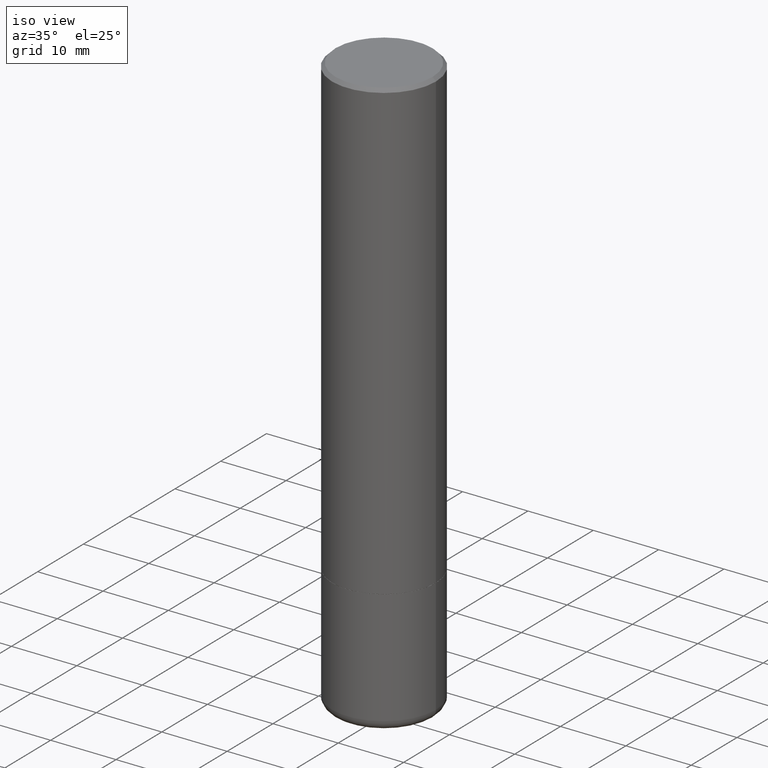
[diagram: clean part render]
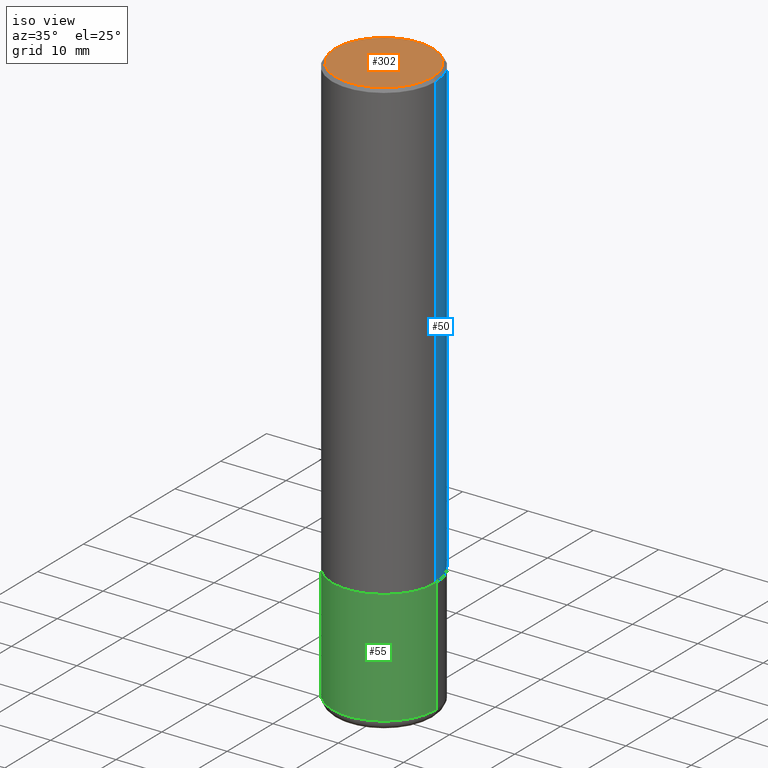
[diagram: same view with three faces highlighted in distinct colors, each labeled with its STEP entity id]
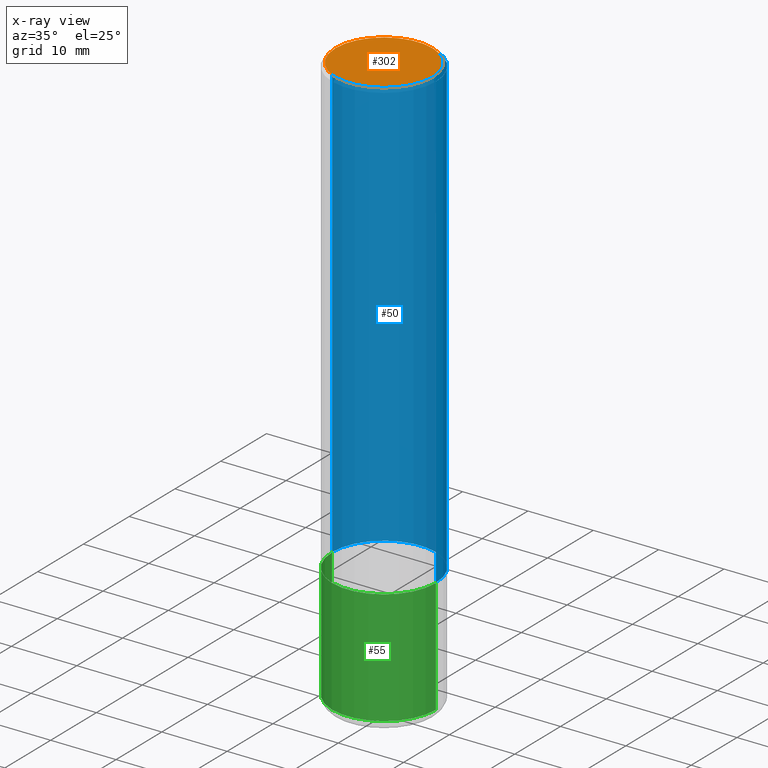
[diagram: x-ray of the same camera — body ghosted, the three highlighted faces saturated]
A machine part, iso view with three faces highlighted in distinct colors.
The next image is the same camera in x-ray (body ghosted, the three faces saturated) — at least one of them is partly hidden behind the body in this view.
Their STEP definitions:

[orange] entity #302 — the highlighted planar face has unit normal (0, -0, -1).
#8 = CARTESIAN_POINT ( 'NONE',  ( -1.043851414335219820E-46, 1.490343170380447200E-32, 4.268512490100411279E-18 ) ) ;
#11 = DIRECTION ( 'NONE',  ( 2.438088387897960049E-29, -3.491481338843145188E-15, -1.000000000000000000 ) ) ;
#18 = AXIS2_PLACEMENT_3D ( 'NONE', #460, #11, #412 ) ;
#28 = AXIS2_PLACEMENT_3D ( 'NONE', #8, #117, #342 ) ;
#31 = EDGE_CURVE ( 'NONE', #238, #51, #263, .T. ) ;
#37 = ORIENTED_EDGE ( 'NONE', *, *, #353, .T. ) ;
#47 = FACE_OUTER_BOUND ( 'NONE', #116, .T. ) ;
#51 = VERTEX_POINT ( 'NONE', #197 ) ;
#86 = PLANE ( 'NONE',  #18 ) ;
#116 = EDGE_LOOP ( 'NONE', ( #483, #37 ) ) ;
#117 = DIRECTION ( 'NONE',  ( -2.445468806185136597E-29, 3.491481338843145583E-15, 1.000000000000000000 ) ) ;
#197 = CARTESIAN_POINT ( 'NONE',  ( 0.2924999999999989830, -2.110215457714314014E-15, 4.268512490114932791E-18 ) ) ;
#230 = CARTESIAN_POINT ( 'NONE',  ( -1.043851414335219820E-46, 1.490343170380447200E-32, 4.268512490100411279E-18 ) ) ;
#238 = VERTEX_POINT ( 'NONE', #252 ) ;
#240 = DIRECTION ( 'NONE',  ( -2.445468806185136597E-29, 3.491481338843145583E-15, 1.000000000000000000 ) ) ;
#252 = CARTESIAN_POINT ( 'NONE',  ( -0.2924999999999989830, 2.077431396611657483E-15, 4.268512490086005323E-18 ) ) ;
#263 = CIRCLE ( 'NONE', #395, 0.2924999999999989830 ) ;
#275 = CIRCLE ( 'NONE', #28, 0.2924999999999989830 ) ;
#302 = ADVANCED_FACE ( 'NONE', ( #47 ), #86, .F. ) ;
#342 = DIRECTION ( 'NONE',  ( 1.000000000000000000, -6.982962677686266711E-15, 4.876067333457706292E-29 ) ) ;
#353 = EDGE_CURVE ( 'NONE', #51, #238, #275, .T. ) ;
#381 = DIRECTION ( 'NONE',  ( 1.000000000000000000, -6.982962677686266711E-15, 4.876067333457706292E-29 ) ) ;
#395 = AXIS2_PLACEMENT_3D ( 'NONE', #230, #240, #381 ) ;
#412 = DIRECTION ( 'NONE',  ( -1.000000000000000000, 6.982962677686265922E-15, -4.876176775795935793E-29 ) ) ;
#460 = CARTESIAN_POINT ( 'NONE',  ( 2.042516583223225834E-15, 0.2924999999999989830, -1.019124035366566451E-15 ) ) ;
#483 = ORIENTED_EDGE ( 'NONE', *, *, #31, .T. ) ;

[blue] entity #50 — the highlighted cylindrical surface (partial cylindrical patch) has radius 7.9375 mm, axis along (-0, 0, 1).
#6 = EDGE_LOOP ( 'NONE', ( #268, #89, #362, #271 ) ) ;
#10 = VERTEX_POINT ( 'NONE', #393 ) ;
#38 = DIRECTION ( 'NONE',  ( -2.445468806185136877E-29, 3.491481338843145188E-15, 1.000000000000000000 ) ) ;
#41 = CARTESIAN_POINT ( 'NONE',  ( -0.3124999999999994449, -2.613509864378025150E-15, -2.749000000000000554 ) ) ;
#50 = ADVANCED_FACE ( 'NONE', ( #458 ), #404, .T. ) ;
#64 = CARTESIAN_POINT ( 'NONE',  ( 4.890937612370311694E-31, -6.982962677686347076E-17, -0.02000000000000015654 ) ) ;
#89 = ORIENTED_EDGE ( 'NONE', *, *, #233, .T. ) ;
#99 = CARTESIAN_POINT ( 'NONE',  ( -0.3124999999999993339, 2.220446049250308348E-15, -1.537167215704654869E-29 ) ) ;
#102 = CIRCLE ( 'NONE', #355, 0.3124999999999994449 ) ;
#123 = AXIS2_PLACEMENT_3D ( 'NONE', #64, #133, #220 ) ;
#133 = DIRECTION ( 'NONE',  ( -2.445468806185136597E-29, 3.491481338843145583E-15, 1.000000000000000000 ) ) ;
#139 = EDGE_CURVE ( 'NONE', #456, #289, #102, .T. ) ;
#151 = VECTOR ( 'NONE', #327, 39.37007874015748143 ) ;
#174 = CIRCLE ( 'NONE', #123, 0.3124999999999991673 ) ;
#192 = DIRECTION ( 'NONE',  ( -2.445468806185136597E-29, 3.491481338843145583E-15, 1.000000000000000000 ) ) ;
#196 = CARTESIAN_POINT ( 'NONE',  ( -0.3124999999999991673, 2.112346210000089132E-15, -0.02000000000000015654 ) ) ;
#208 = EDGE_CURVE ( 'NONE', #10, #331, #174, .T. ) ;
#211 = LINE ( 'NONE', #99, #151 ) ;
#220 = DIRECTION ( 'NONE',  ( 1.000000000000000000, -6.982962677686266711E-15, 0.000000000000000000 ) ) ;
#232 = LINE ( 'NONE', #457, #411 ) ;
#233 = EDGE_CURVE ( 'NONE', #289, #331, #211, .T. ) ;
#254 = AXIS2_PLACEMENT_3D ( 'NONE', #467, #192, #388 ) ;
#268 = ORIENTED_EDGE ( 'NONE', *, *, #139, .T. ) ;
#271 = ORIENTED_EDGE ( 'NONE', *, *, #333, .F. ) ;
#289 = VERTEX_POINT ( 'NONE', #41 ) ;
#306 = CARTESIAN_POINT ( 'NONE',  ( 6.722593748202942280E-29, -9.598082200479810007E-15, -2.749000000000000554 ) ) ;
#327 = DIRECTION ( 'NONE',  ( -2.445468806185136877E-29, 3.491481338843145188E-15, 1.000000000000000000 ) ) ;
#331 = VERTEX_POINT ( 'NONE', #196 ) ;
#333 = EDGE_CURVE ( 'NONE', #456, #10, #232, .T. ) ;
#347 = DIRECTION ( 'NONE',  ( -2.445468806185136597E-29, 3.491481338843145583E-15, 1.000000000000000000 ) ) ;
#352 = CARTESIAN_POINT ( 'NONE',  ( 0.3124999999999994449, -1.178025803725676520E-14, -2.749000000000000554 ) ) ;
#355 = AXIS2_PLACEMENT_3D ( 'NONE', #306, #347, #418 ) ;
#362 = ORIENTED_EDGE ( 'NONE', *, *, #208, .F. ) ;
#388 = DIRECTION ( 'NONE',  ( 1.000000000000000000, -6.982962677686266711E-15, 4.876176775795935793E-29 ) ) ;
#393 = CARTESIAN_POINT ( 'NONE',  ( 0.3124999999999991673, -2.213735251080461389E-15, -0.02000000000000015654 ) ) ;
#404 = CYLINDRICAL_SURFACE ( 'NONE', #254, 0.3124999999999993339 ) ;
#411 = VECTOR ( 'NONE', #38, 39.37007874015748143 ) ;
#418 = DIRECTION ( 'NONE',  ( 1.000000000000000000, -6.982962677686269077E-15, 0.000000000000000000 ) ) ;
#456 = VERTEX_POINT ( 'NONE', #352 ) ;
#457 = CARTESIAN_POINT ( 'NONE',  ( 0.3124999999999993339, -2.182175836776953614E-15, 1.523805242436226712E-29 ) ) ;
#458 = FACE_OUTER_BOUND ( 'NONE', #6, .T. ) ;
#467 = CARTESIAN_POINT ( 'NONE',  ( 0.000000000000000000, 0.000000000000000000, 0.000000000000000000 ) ) ;

[green] entity #55 — the highlighted cylindrical surface (partial cylindrical patch) has radius 7.9375 mm, axis along (-0, 0, 1).
#12 = CARTESIAN_POINT ( 'NONE',  ( 0.000000000000000000, 0.000000000000000000, 0.000000000000000000 ) ) ;
#25 = CARTESIAN_POINT ( 'NONE',  ( 8.412418280234396057E-29, -1.201070378231507189E-14, -3.440002284616148653 ) ) ;
#30 = CARTESIAN_POINT ( 'NONE',  ( 0.3124999999999994449, -1.178374951859560505E-14, -2.750000000000000000 ) ) ;
#33 = CARTESIAN_POINT ( 'NONE',  ( 0.3125000000000000000, -1.419287961909203023E-14, -3.440002284616148653 ) ) ;
#55 = ADVANCED_FACE ( 'NONE', ( #344 ), #227, .T. ) ;
#66 = CARTESIAN_POINT ( 'NONE',  ( 0.3124999999999997224, -2.182175836776956375E-15, 1.523805242436228674E-29 ) ) ;
#69 = DIRECTION ( 'NONE',  ( 1.000000000000000000, -6.982962677686269077E-15, 0.000000000000000000 ) ) ;
#70 = DIRECTION ( 'NONE',  ( -2.445468806185136597E-29, 3.491481338843145583E-15, 1.000000000000000000 ) ) ;
#73 = DIRECTION ( 'NONE',  ( -2.445468806185136597E-29, 3.491481338843145583E-15, 1.000000000000000000 ) ) ;
#81 = EDGE_LOOP ( 'NONE', ( #419, #311, #462, #205 ) ) ;
#108 = LINE ( 'NONE', #66, #319 ) ;
#129 = VECTOR ( 'NONE', #287, 39.37007874015748143 ) ;
#138 = CARTESIAN_POINT ( 'NONE',  ( -0.3124999999999997224, 2.220446049250311109E-15, -1.537167215704656831E-29 ) ) ;
#163 = AXIS2_PLACEMENT_3D ( 'NONE', #269, #73, #191 ) ;
#191 = DIRECTION ( 'NONE',  ( 1.000000000000000000, -6.982962677686269077E-15, 0.000000000000000000 ) ) ;
#200 = EDGE_CURVE ( 'NONE', #449, #231, #423, .T. ) ;
#205 = ORIENTED_EDGE ( 'NONE', *, *, #358, .F. ) ;
#210 = AXIS2_PLACEMENT_3D ( 'NONE', #25, #70, #69 ) ;
#214 = DIRECTION ( 'NONE',  ( -2.445468806185136877E-29, 3.491481338843145188E-15, 1.000000000000000000 ) ) ;
#224 = VERTEX_POINT ( 'NONE', #403 ) ;
#227 = CYLINDRICAL_SURFACE ( 'NONE', #379, 0.3124999999999997224 ) ;
#231 = VERTEX_POINT ( 'NONE', #33 ) ;
#243 = EDGE_CURVE ( 'NONE', #231, #246, #108, .T. ) ;
#246 = VERTEX_POINT ( 'NONE', #30 ) ;
#262 = EDGE_CURVE ( 'NONE', #449, #224, #485, .T. ) ;
#269 = CARTESIAN_POINT ( 'NONE',  ( 6.725039217009124520E-29, -9.601573681818649859E-15, -2.750000000000000000 ) ) ;
#287 = DIRECTION ( 'NONE',  ( -2.445468806185136877E-29, 3.491481338843145188E-15, 1.000000000000000000 ) ) ;
#311 = ORIENTED_EDGE ( 'NONE', *, *, #200, .T. ) ;
#319 = VECTOR ( 'NONE', #214, 39.37007874015748143 ) ;
#344 = FACE_OUTER_BOUND ( 'NONE', #81, .T. ) ;
#358 = EDGE_CURVE ( 'NONE', #224, #246, #454, .T. ) ;
#376 = DIRECTION ( 'NONE',  ( -2.445468806185136597E-29, 3.491481338843145583E-15, 1.000000000000000000 ) ) ;
#379 = AXIS2_PLACEMENT_3D ( 'NONE', #12, #376, #385 ) ;
#385 = DIRECTION ( 'NONE',  ( 1.000000000000000000, -6.982962677686266711E-15, 4.876176775795936353E-29 ) ) ;
#394 = CARTESIAN_POINT ( 'NONE',  ( -0.3125000000000000000, -8.585692682816546214E-15, -3.440002284616148653 ) ) ;
#403 = CARTESIAN_POINT ( 'NONE',  ( -0.3124999999999994449, -8.585692682816550947E-15, -2.750000000000000000 ) ) ;
#419 = ORIENTED_EDGE ( 'NONE', *, *, #262, .F. ) ;
#423 = CIRCLE ( 'NONE', #210, 0.3125000000000000000 ) ;
#449 = VERTEX_POINT ( 'NONE', #394 ) ;
#454 = CIRCLE ( 'NONE', #163, 0.3124999999999994449 ) ;
#462 = ORIENTED_EDGE ( 'NONE', *, *, #243, .T. ) ;
#485 = LINE ( 'NONE', #138, #129 ) ;